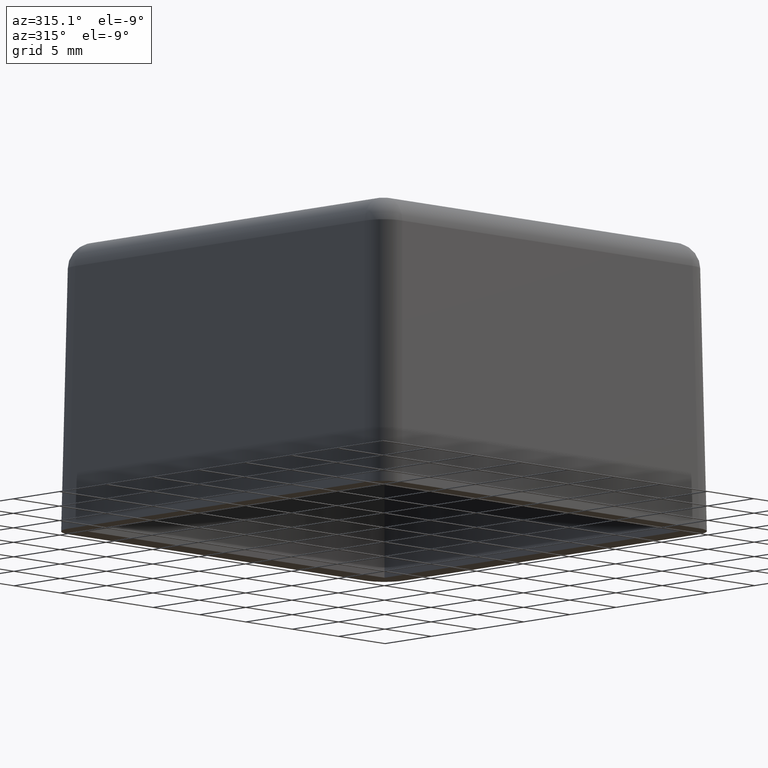
[diagram: clean part render]
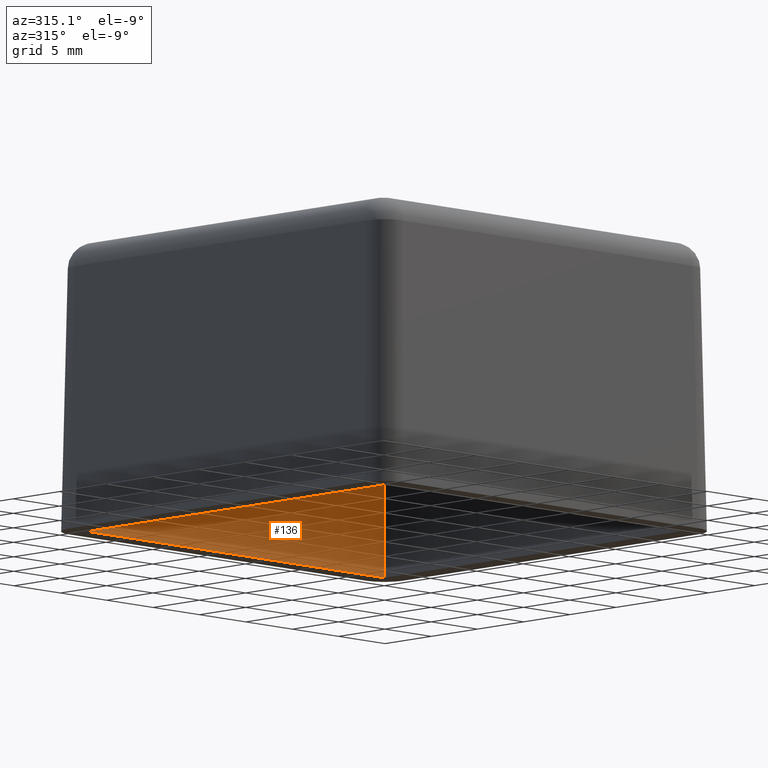
[diagram: same view with one face highlighted and labeled with its STEP entity id]
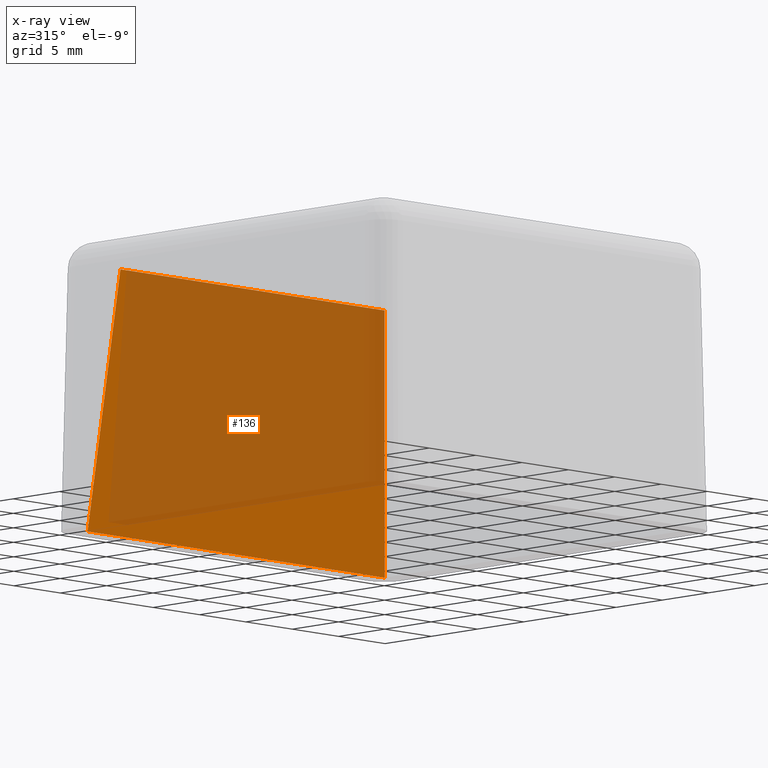
[diagram: x-ray of the same camera — body ghosted, the highlighted face saturated]
A machine part, auxiliary view. The second image highlights one B-rep face of the part: STEP entity #136.
The next image is the same camera in x-ray: the body ghosted, the highlighted face saturated — about 77% of this face is hidden behind the body in this view.
In plain terms, the highlighted planar face has unit normal (0, 0.9962, 0.0872).
Its self-contained STEP definition (entity closure, byte-faithful):
#136 = ADVANCED_FACE( '', ( #286 ), #287, .F. );
#286 = FACE_OUTER_BOUND( '', #460, .T. );
#287 = PLANE( '', #461 );
#460 = EDGE_LOOP( '', ( #997, #998, #999, #1000 ) );
#461 = AXIS2_PLACEMENT_3D( '', #1001, #1002, #1003 );
#997 = ORIENTED_EDGE( '', *, *, #1335, .F. );
#998 = ORIENTED_EDGE( '', *, *, #1336, .F. );
#999 = ORIENTED_EDGE( '', *, *, #1332, .T. );
#1000 = ORIENTED_EDGE( '', *, *, #1337, .T. );
#1001 = CARTESIAN_POINT( '', ( -16.0054000000000, 16.0054000000000, 0.000000000000000 ) );
#1002 = DIRECTION( '', ( 0.000000000000000, 0.996194698091746, 0.0871557427476582 ) );
#1003 = DIRECTION( '', ( 0.000000000000000, -0.0871557427476582, 0.996194698091746 ) );
#1332 = EDGE_CURVE( '', #1623, #1620, #1624, .F. );
#1335 = EDGE_CURVE( '', #1628, #1629, #1630, .F. );
#1336 = EDGE_CURVE( '', #1623, #1628, #1631, .T. );
#1337 = EDGE_CURVE( '', #1620, #1629, #1632, .T. );
#1620 = VERTEX_POINT( '', #2147 );
#1623 = VERTEX_POINT( '', #2151 );
#1624 = LINE( '', #2152, #2153 );
#1628 = VERTEX_POINT( '', #2159 );
#1629 = VERTEX_POINT( '', #2160 );
#1630 = LINE( '', #2161, #2162 );
#1631 = LINE( '', #2163, #2164 );
#1632 = LINE( '', #2165, #2166 );
#2147 = CARTESIAN_POINT( '', ( -14.2328796769648, 14.2328796769648, 20.2600000000000 ) );
#2151 = CARTESIAN_POINT( '', ( 14.2328796769648, 14.2328796769648, 20.2600000000000 ) );
#2152 = CARTESIAN_POINT( '', ( -16.0054000000000, 14.2328796769648, 20.2600000000000 ) );
#2153 = VECTOR( '', #2452, 1000.00000000000 );
#2159 = CARTESIAN_POINT( '', ( 16.0054000000000, 16.0054000000000, 0.000000000000000 ) );
#2160 = CARTESIAN_POINT( '', ( -16.0054000000000, 16.0054000000000, 0.000000000000000 ) );
#2161 = CARTESIAN_POINT( '', ( -16.0054000000000, 16.0054000000000, 0.000000000000000 ) );
#2162 = VECTOR( '', #2455, 1000.00000000000 );
#2163 = CARTESIAN_POINT( '', ( 15.7640751434739, 15.7640751434739, 2.75835573204954 ) );
#2164 = VECTOR( '', #2456, 1000.00000000000 );
#2165 = CARTESIAN_POINT( '', ( -15.7640751434739, 15.7640751434739, 2.75835573204954 ) );
#2166 = VECTOR( '', #2457, 1000.00000000000 );
#2452 = DIRECTION( '', ( 1.00000000000000, 0.000000000000000, 0.000000000000000 ) );
#2455 = DIRECTION( '', ( 1.00000000000000, 0.000000000000000, 0.000000000000000 ) );
#2456 = DIRECTION( '', ( 0.0868265938642476, 0.0868265938642476, -0.992432509138967 ) );
#2457 = DIRECTION( '', ( -0.0868265938642476, 0.0868265938642476, -0.992432509138967 ) );